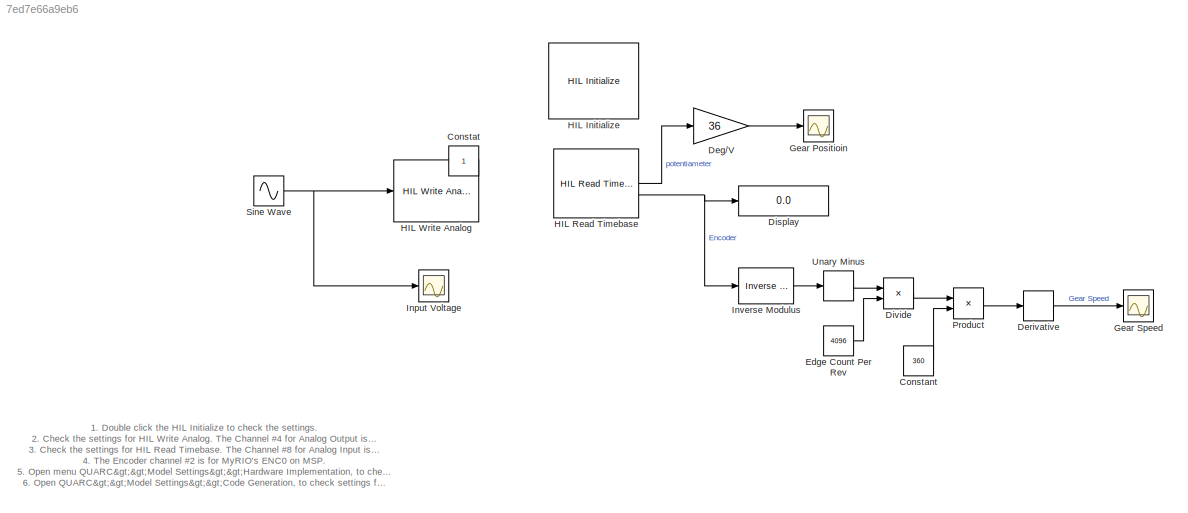
MODEL slx_7ed7e66a9eb6
KIND model
CONFIG AbsTol = auto
CONFIG EnableMultiTasking = on
CONFIG FixedStep = 0.005
CONFIG MaxStep = auto
CONFIG MinStep = auto
CONFIG RelTol = 1e-3
CONFIG SampleTimeConstraint = Unconstrained
CONFIG SolverName = FixedStepDiscrete
CONFIG StartTime = 0.0
CONFIG StopTime = inf
BLOCK [Constant] Constant
  Value = 360
BLOCK [Constant] Constat
  IOType = siggen
BLOCK [Gain] Deg//V
  Gain = 36
BLOCK [Derivative] Derivative
BLOCK [Display] Display
  Decimation = 1
BLOCK [Product] Divide
  Inputs = */
BLOCK [Constant] Edge Count Per Rev 
  Value = 4096
BLOCK [Scope] Gear Positioin
  Floating = off
  NumInputPorts = 1
  ScopeSpecificationString = Simulink.scopes.TimeScopeBlockCfg('CurrentConfiguration', extmgr.ConfigurationSet(extmgr.Configuration('Core','General UI',true),extmgr.Configuration('Core','Source UI',true),extmgr.Configuration('Sources','WiredSimulink',true,'DataLoggingVariableName','ScopeData1'),extmgr.Configuration('Visuals','Time Domain',true,'SerializedDisplays',{struct('MinYLimReal','-214.82668','MaxYLimReal','209.0259','Y...<+1585ch>
BLOCK [Scope] Gear Speed
  Floating = off
  NumInputPorts = 1
  ScopeSpecificationString = Simulink.scopes.TimeScopeBlockCfg('CurrentConfiguration', extmgr.ConfigurationSet(extmgr.Configuration('Core','General UI',true),extmgr.Configuration('Core','Source UI',true),extmgr.Configuration('Sources','WiredSimulink',true,'DataLoggingVariableName','ScopeData1'),extmgr.Configuration('Visuals','Time Domain',true,'SerializedDisplays',{struct('MinYLimReal','-450.43945','MaxYLimReal','450.43945','...<+1589ch>
BLOCK [Reference] HIL Initialize  REF=quarc_library/Data Acquisition/Generic/Configuration/HIL Initialize
  AttributesFormatString = %<object_name> (%<board_type>-%<board_number>)
  SourceBlock = quarc_library/Data Acquisition/Generic/Configuration/HIL Initialize
  SourceProductName = QUARC Targets
  SourceType = HIL Initialize
  UserDataPersistent = on
BLOCK [Reference] HIL Read Timebase  REF=quarc_library/Data Acquisition/Generic/Timebases/HIL Read
Timebase
  AttributesFormatString = (%<object_name>)
  SourceBlock = quarc_library/Data Acquisition/Generic/Timebases/HIL Read\nTimebase
  SourceProductName = QUARC Targets
  SourceType = HIL Read Timebase
  UserDataPersistent = on
BLOCK [Reference] HIL Write Analog  REF=quarc_library/Data Acquisition/Generic/Immediate I//O/HIL Write Analog
  AttributesFormatString = (%<object_name>)
  SourceBlock = quarc_library/Data Acquisition/Generic/Immediate I//O/HIL Write Analog
  SourceProductName = QUARC Targets
  SourceType = HIL Write Analog
  UserDataPersistent = on
BLOCK [Scope] Input Voltage
  Floating = off
  NumInputPorts = 1
  ScopeSpecificationString = Simulink.scopes.TimeScopeBlockCfg('CurrentConfiguration', extmgr.ConfigurationSet(extmgr.Configuration('Core','General UI',true),extmgr.Configuration('Core','Source UI',true),extmgr.Configuration('Sources','WiredSimulink',true,'DataLoggingVariableName','ScopeData1'),extmgr.Configuration('Visuals','Time Domain',true,'SerializedDisplays',{struct('MinYLimReal','-5.00000','MaxYLimReal','4.99999','YLab...<+1585ch>
BLOCK [Reference] Inverse Modulus  REF=quarc_library/Discontinuities/Inverse
Modulus
  SourceBlock = quarc_library/Discontinuities/Inverse\nModulus
  SourceProductName = QUARC Targets
  SourceType = Inverse Modulus
BLOCK [Product] Product
BLOCK [Sin] Sine Wave
  Amplitude = 4
  Frequency = 3.14
  SampleTime = 0
BLOCK [UnaryMinus] Unary Minus
ANNOTATION (root): 1. Double click the HIL Initialize to check the settings. 2. Check the settings for HIL Write Analog. The Channel #4 for Analog Output is for NI MyRIO 1900's MSP AO0 pin. 3. Check the settings for HIL Read Timebase. The Channel #8 for Analog Input is for MyRIO's MSP AI0, to which we will connect the SRV02's potentiometer. 4. The Encoder channel #2 is for MyRIO's ENC0 on MSP. 5. Open menu QUARC>>Mo...<+329ch>
LINE Constant:1 -> Product:2
LINE Deg//V:1 -> Gear Positioin:1
LINE Derivative:1 -> Gear Speed:1
LINE Divide:1 -> Product:1
LINE Edge Count Per Rev :1 -> Divide:2
LINE HIL Read Timebase:1 -> Deg//V:1
NET HIL Read Timebase:2 -> Display:1, Inverse Modulus:1
LINE Inverse Modulus:1 -> Unary Minus:1
LINE Product:1 -> Derivative:1
NET Sine Wave:1 -> HIL Write Analog:1, Input Voltage:1
LINE Unary Minus:1 -> Divide:1
note: NET lines group one-source signal fan-out (src -> all destinations, sorted); 1:1 wires keep LINE
